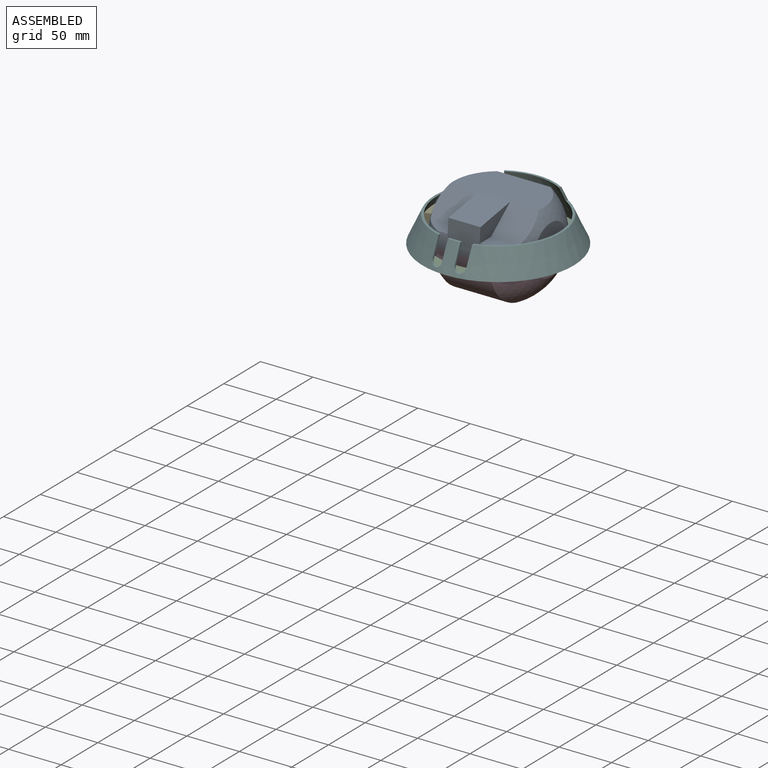
[diagram: assembled view]
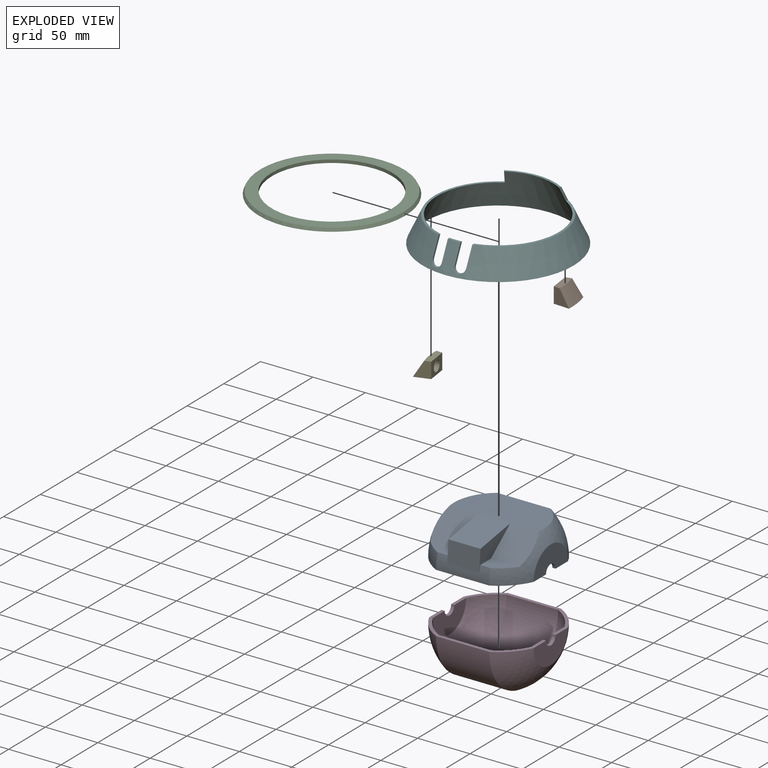
[diagram: exploded view]
GUIDED TOUR — MATED ASSEMBLY (Onshape document 95c7f3a3e9fd0e2e9566c98f, AutoMate assembly 95c7f3a3e9fd0e2e9566c98f_8609b0c129c2d041dbbb4b11_05ddca2daed9d79f0fb7b234_default)

This assembly has 6 components, labeled P0..P5 below (a component is one placed occurrence of a part; the same part can appear more than once), held together by 6 mates. A mate is a constraint between two components; its type names the relative motion it leaves free:
  CYLINDRICAL — leaves both rotation about and translation along the listed axis free,
  FASTENED — locks the two components together rigidly (no relative motion),
  PLANAR — leaves sliding in the plane through the listed point (normal = the listed direction) and rotation about that normal free.
Axis/direction vectors are unit vectors and 'through' points are millimeter coordinates, both in the assembly's world frame.

MATES
  1. CYLINDRICAL "Cylindrical 3": P4 <-> P2, axis (0.000, 0.000, -1.000) through (-6.62, -30.67, 6.61) mm
  2. CYLINDRICAL "Cylindrical 2": P1 <-> P2, axis (0.000, 0.000, -1.000) through (-6.62, -30.67, 6.74) mm
  3. FASTENED "Fastened 1": P3 <-> P0, direction (0.000, 0.000, 1.000) through (-6.77, 5.37, 10.98) mm
  4. CYLINDRICAL "Cylindrical 1": P5 <-> P2, axis (0.000, 0.000, -1.000) through (-6.62, -30.67, 3.74) mm
  5. CYLINDRICAL "Cylindrical 4": P4 <-> P2, axis (0.000, 0.000, -1.000) through (-6.62, -30.67, 6.61) mm
  6. PLANAR "Planar 1": P2 <-> P5, direction (0.000, 0.000, -1.000) through (-6.62, -30.67, 3.74) mm

ASSEMBLY ORDER
  1. P5 — the base component [order verified]
  2. P1 [order verified]
  3. P4 [order verified]
  4. P2 [order verified]
  5. P0 [order verified]
  6. P3 [order verified]
(P1, P4 verified with a relaxed clearance tolerance: the source model stores slight part interference there.)
Order-tag legend:
  [order verified] — this step's position reverses a verified removal order: the component was checked to insert without passing through the ones already placed.

Of the 6 components, 5 carry the full construction recipe — the FeatureScript program that regenerates the part's solid from scratch; the rest are supplied as boundary geometry only.
Each toured component is shown spotlighted twice — in the assembled view, then in the exploded view, where a leader line traces a displaced component back to its assembled socket (saturated green if recipe-attached, orange if geometry-only; every other component desaturated gray) — followed by its recipe or geometry summary and the mates that hold it.
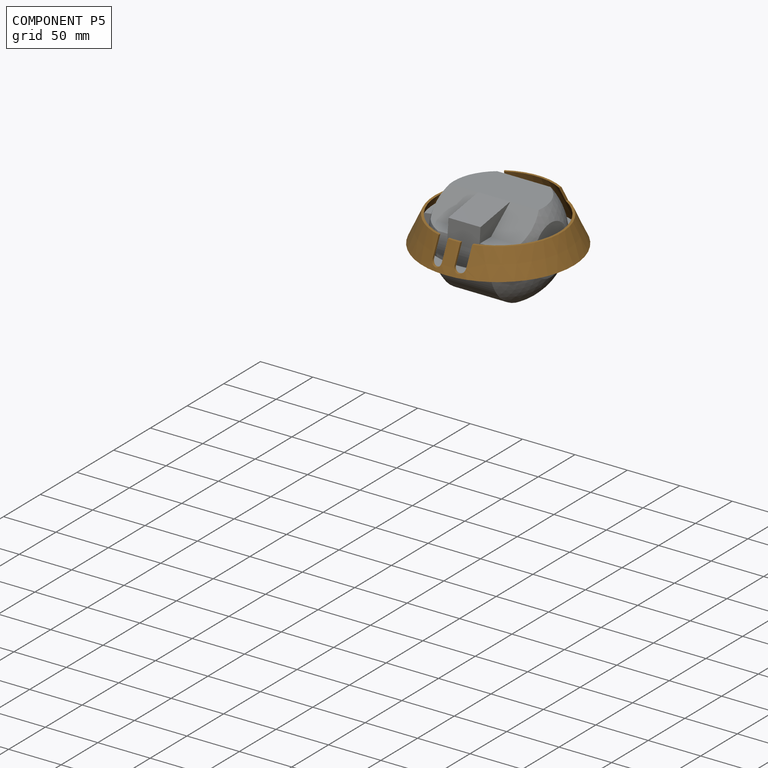
[diagram: component P5 — assembled]
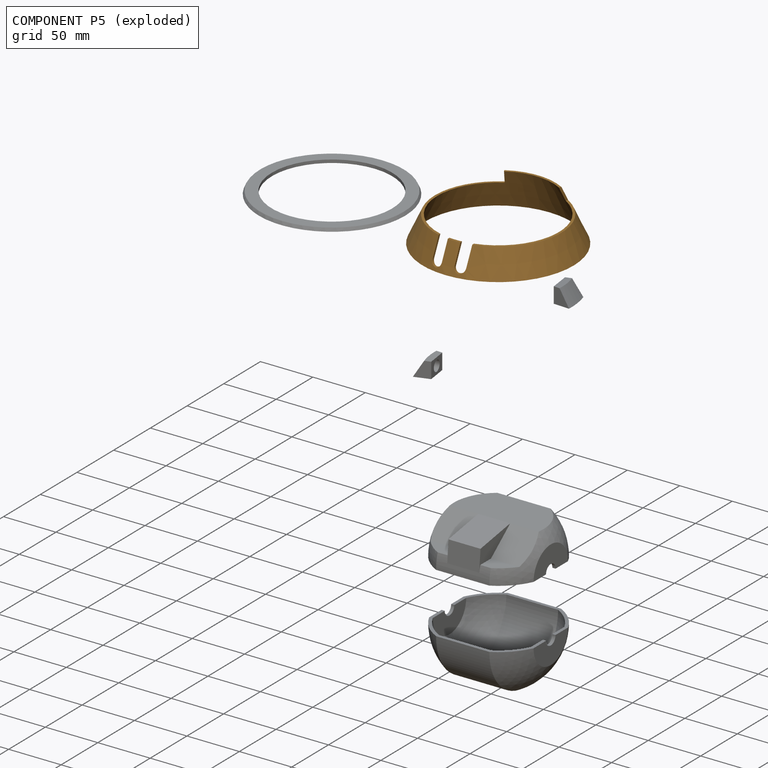
[diagram: component P5 — exploded]
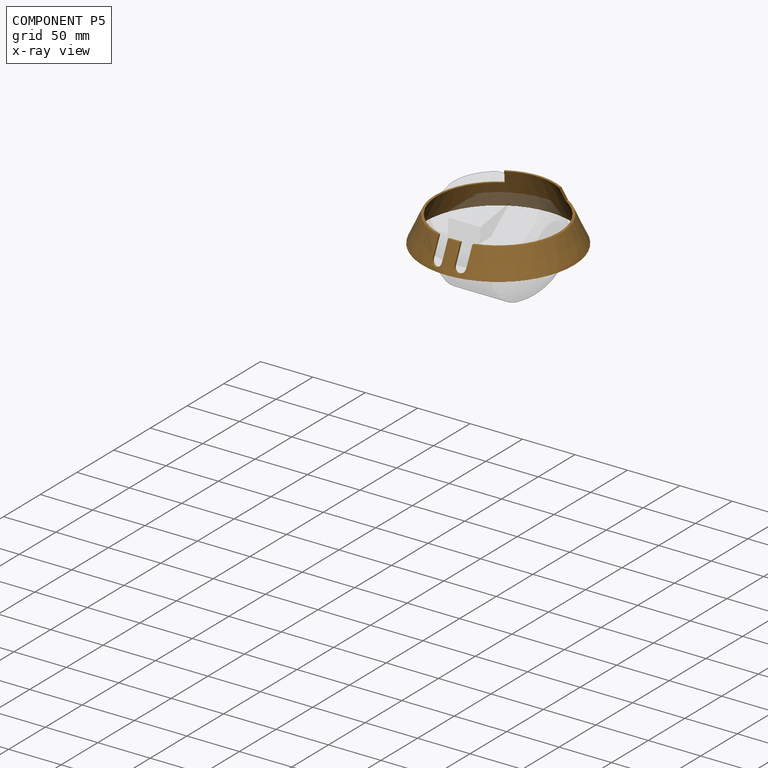
[diagram: component P5 — x-ray view]
COMPONENT P5 — geometry summary (no construction recipe available for this part):
  bounding box: 144.1 x 144.1 x 37.8 mm
  B-rep topology: 1 solid, 15 faces, 84 edges
  volume: 23409 mm^3 (3% of its bounding box)
  symmetry: mirror-symmetric across its x mid-plane
Held by: CYLINDRICAL mate "Cylindrical 1" to P2; PLANAR mate "Planar 1" to P2.
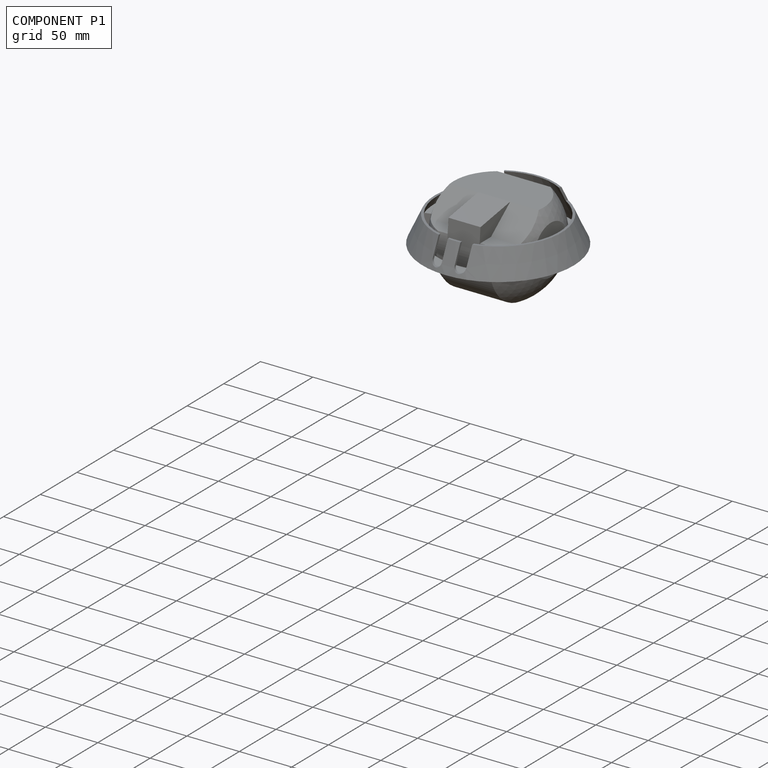
[diagram: component P1 — assembled]
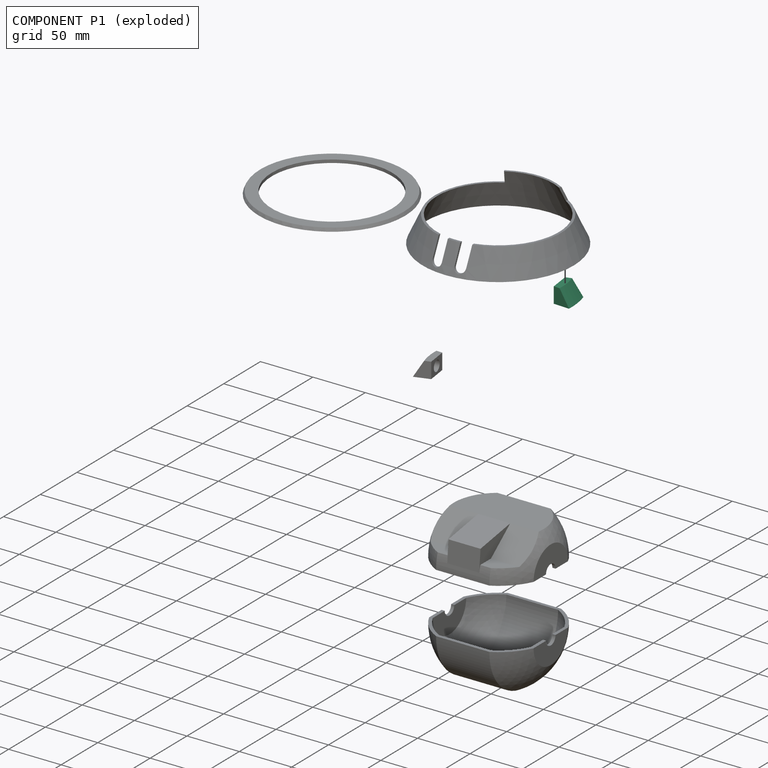
[diagram: component P1 — exploded]
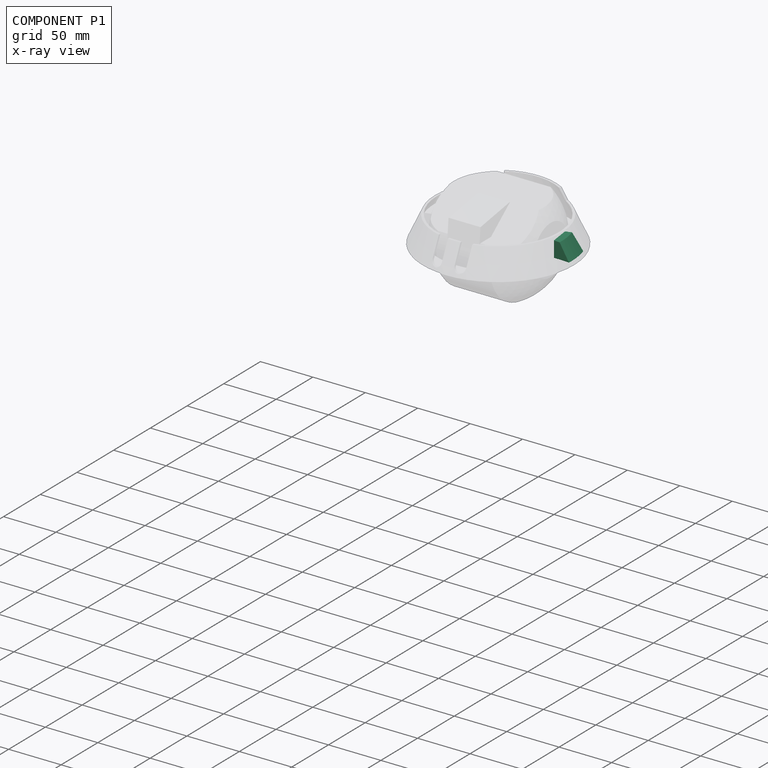
[diagram: component P1 — x-ray view]
COMPONENT P1 — recipe-attached (CADFS 00121436, mesh-verified: the recipe's output STEP matches this component's geometry to below the mesh-comparison resolution (tessellation chordal tolerance ~0.0489 mm)).
Held by: CYLINDRICAL mate "Cylindrical 2" to P2.
Construction recipe (FeatureScript — the CAD program that rebuilds this solid; sketch coordinates are in the units given by the * unit suffixes, e.g. mm):

FeatureScript 1511;
import(path : "onshape/std/geometry.fs", version : "1511.0");
import(path : "onshape/std/common.fs", version : "1511.0");
const mm = millimeter;
const VERTEX = EntityType.VERTEX;
const EDGE = EntityType.EDGE;
const FACE = EntityType.FACE;
const BODY = EntityType.BODY;
function v(x, y){return vector(x, y);}
function OD(order){return orderDisambiguation(order);}
function OSD(set){return originalSetDisambiguation(set);}
function TD(topology){return topologyDisambiguation(topology);}
function TDD(query){return trueDependencyDisambiguation(query);}
function sQuery(a, b, c) {return sketchEntityQuery(a, b, c);}

annotation { "Feature Type Name" : "Feature", "Feature Type Description" : "" }
export const myFeature = defineFeature(function(context is Context, id is Id, definition is map)
    precondition{}
    {
        {
            var Q0;
            Q0=qCreatedBy(makeId("Front.planeOp"),FACE);
            var sketch = newSketch(context, id + "F0", { "sketchPlane" : qUnion([Q0])});
            skLineSegment(sketch, "E0", {"start": v(0, 0) * mm, "end": v(0, 25.25) * mm});
            skLineSegment(sketch, "E1.0", {"start": v(60.55, 15) * mm, "end": v(69.8, 0) * mm});
            skLineSegment(sketch, "E2", {"start": v(69.8, 0) * mm, "end": v(54.8, 0) * mm});
            skLineSegment(sketch, "E3", {"start": v(54.8, 0) * mm, "end": v(54.8, 15) * mm});
            skLineSegment(sketch, "E4", {"start": v(54.8, 15) * mm, "end": v(60.55, 15) * mm});
            skSolve(sketch);
        }
        {
            var Q0;
            Q0=makeQuery(id+"F0.imprint","IMPRINT",FACE,{"disambiguationData":[TD([[makeQuery(id+"F0.imprint","IMPRINT",EDGE,{"derivedFrom":sQuery(id+"F0.wireOp",EDGE,"E1.0")}),-1.0]])]});
            var Q1;
            Q1=sQuery(id+"F0.wireOp",EDGE,"E0");
            revolve(context, id + "F5", {"entities" : qUnion([Q0]), "axis" : qUnion([Q1]), "revolveType" : RevolveType.TWO_DIRECTIONS, "angle" : 10 * degree, "angleBack" : 350 * degree});
        }
        {
            var Q0;
            Q0=qCreatedBy(makeId("Right.planeOp"),FACE);
            var sketch = newSketch(context, id + "F1", { "sketchPlane" : qUnion([Q0])});
            skCircle(sketch, "E5", {"center": v(0, 7.5) * mm, "radius": 5 * mm});
            skSolve(sketch);
        }
        {
            var Q0;
            Q0=makeQuery(id+"F5.opRevolve","SWEPT_FACE",FACE,{"disambiguationData":[OSD([sQuery(id+"F0.wireOp",EDGE,"E4")])]});
            var sketch = newSketch(context, id + "F2", { "sketchPlane" : qUnion([Q0])});
            skLineSegment(sketch, "E6", {"start": v(53.96, 9.52) * mm, "end": v(53.96, -9.52) * mm});
            skLineSegment(sketch, "E7", {"start": v(53.96, -9.52) * mm, "end": v(54.8, -9.66) * mm});
            skPoint(sketch, "E7.endSnap0", {"position": v(54.8, 0) * mm});
            skLineSegment(sketch, "E8", {"start": v(54.8, 9.66) * mm, "end": v(53.96, 9.52) * mm});
            skLineSegment(sketch, "E9", {"start": v(54.8, 9.66) * mm, "end": v(56.5, 0) * mm});
            skLineSegment(sketch, "E10", {"start": v(56.5, 0) * mm, "end": v(54.8, -9.66) * mm});
            skSolve(sketch);
        }
        {
            var Q0;
            Q0 = qSketchRegion(id + "F2", true);
            extrude(context, id + "F3", {"entities" : qUnion([Q0]), "operationType" : NewBodyOperationType.ADD, "oppositeDirection" : true, "depth" : 15 * mm});
        }
        {
            var Q0;
            Q0 = qSketchRegion(id + "F1", true);
            extrude(context, id + "F4", {"entities" : qUnion([Q0]), "operationType" : NewBodyOperationType.REMOVE, "depth" : 61.9 * mm});
        }
    });
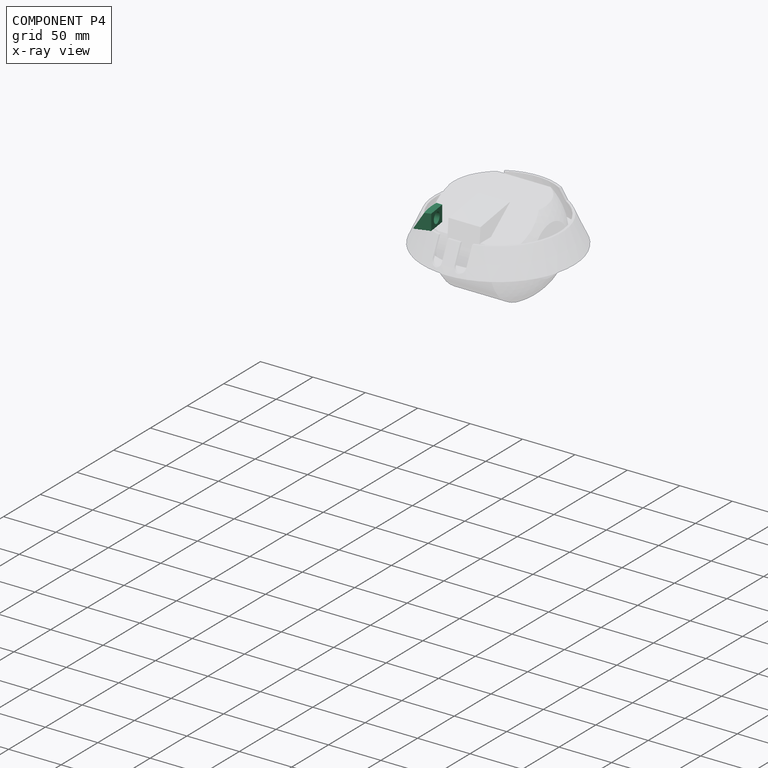
[diagram: component P4 — x-ray view]
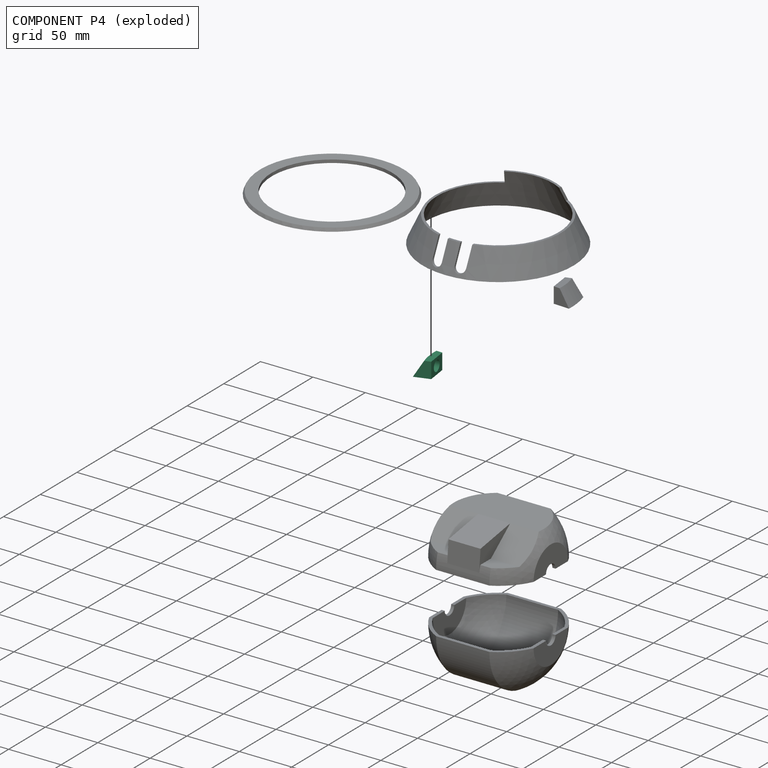
[diagram: component P4 — exploded]
COMPONENT P4 — same part as P1 (CADFS 00121436); its construction recipe is shown at P1.
Held by: CYLINDRICAL mate "Cylindrical 3" to P2; CYLINDRICAL mate "Cylindrical 4" to P2.
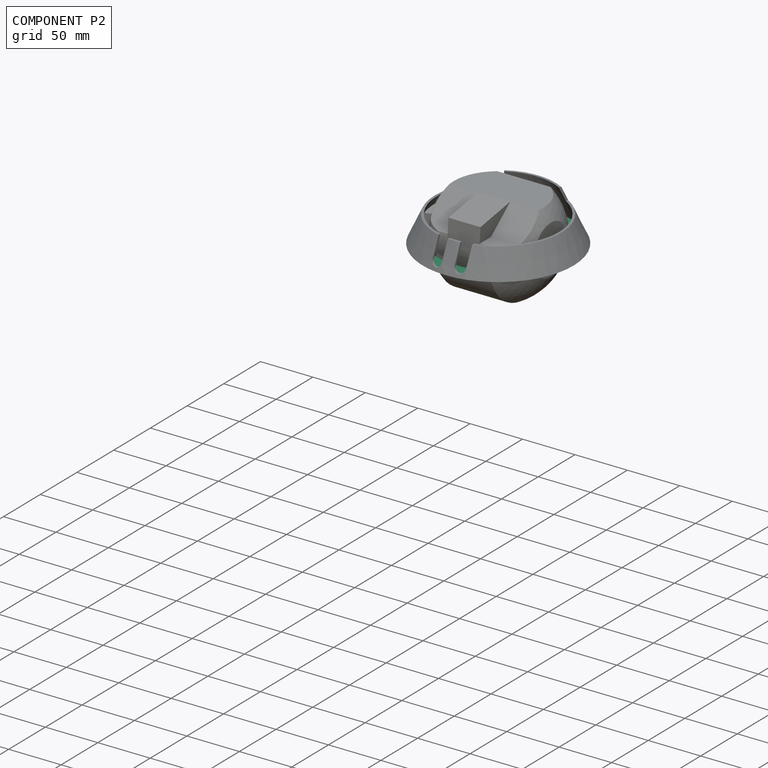
[diagram: component P2 — assembled]
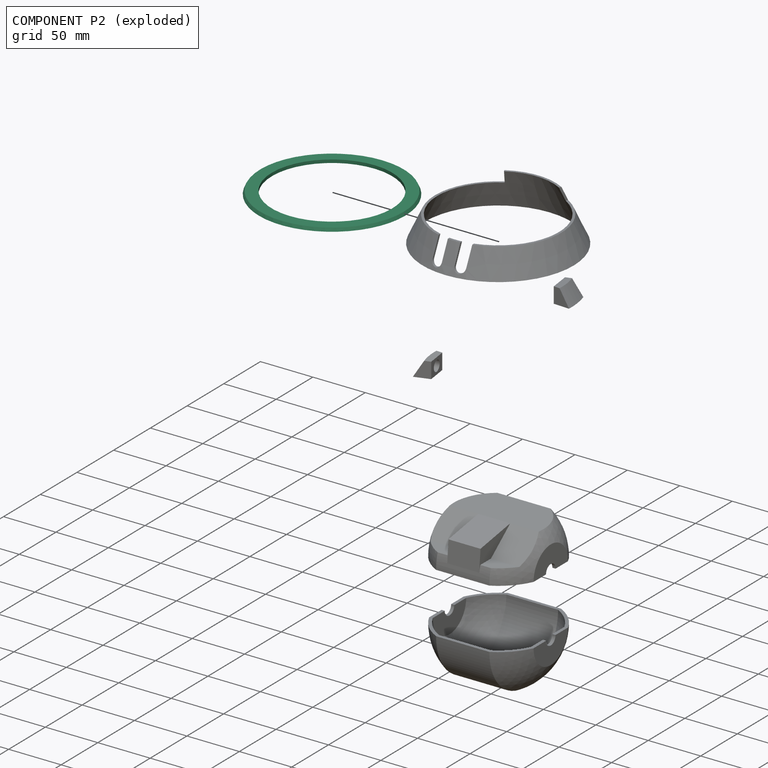
[diagram: component P2 — exploded]
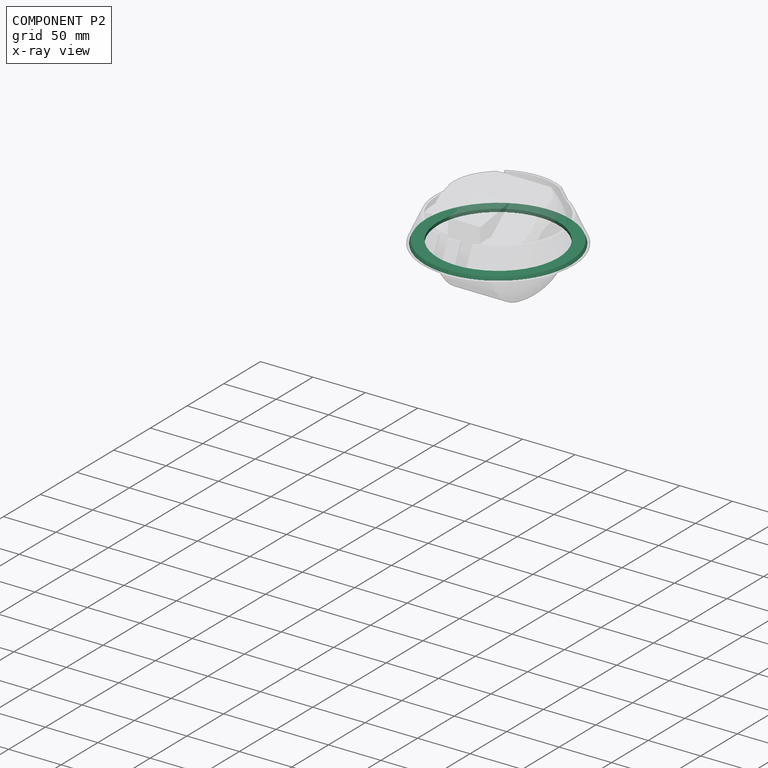
[diagram: component P2 — x-ray view]
COMPONENT P2 — recipe-attached (CADFS 00121437, mesh-verified: the recipe's output STEP matches this component's geometry to below the mesh-comparison resolution (tessellation chordal tolerance ~0.296 mm)).
Held by: CYLINDRICAL mate "Cylindrical 3" to P4; CYLINDRICAL mate "Cylindrical 2" to P1; CYLINDRICAL mate "Cylindrical 1" to P5; CYLINDRICAL mate "Cylindrical 4" to P4; PLANAR mate "Planar 1" to P5.
Construction recipe (FeatureScript — the CAD program that rebuilds this solid; sketch coordinates are in the units given by the * unit suffixes, e.g. mm):

FeatureScript 1511;
import(path : "onshape/std/geometry.fs", version : "1511.0");
import(path : "onshape/std/common.fs", version : "1511.0");
const mm = millimeter;
const VERTEX = EntityType.VERTEX;
const EDGE = EntityType.EDGE;
const FACE = EntityType.FACE;
const BODY = EntityType.BODY;
function v(x, y){return vector(x, y);}
function OD(order){return orderDisambiguation(order);}
function OSD(set){return originalSetDisambiguation(set);}
function TD(topology){return topologyDisambiguation(topology);}
function TDD(query){return trueDependencyDisambiguation(query);}
function sQuery(a, b, c) {return sketchEntityQuery(a, b, c);}

annotation { "Feature Type Name" : "Feature", "Feature Type Description" : "" }
export const myFeature = defineFeature(function(context is Context, id is Id, definition is map)
    precondition{}
    {
        {
            var Q0;
            Q0=qCreatedBy(makeId("Front.planeOp"),FACE);
            var sketch = newSketch(context, id + "F0", { "sketchPlane" : qUnion([Q0])});
            skLineSegment(sketch, "E0.0", {"start": v(68.41, 3) * mm, "end": v(69.8, 0) * mm});
            skPoint(sketch, "E1.end.orphan", {"position": v(-60.33, 25.25) * mm});
            skPoint(sketch, "E2.orphan", {"position": v(-72, 0) * mm});
            skLineSegment(sketch, "E3", {"start": v(69.8, 0) * mm, "end": v(0, 0) * mm});
            skLineSegment(sketch, "E4.0", {"start": v(68.41, 3) * mm, "end": v(0, 3) * mm});
            skLineSegment(sketch, "E5", {"start": v(0, 3) * mm, "end": v(0, 0) * mm});
            skSolve(sketch);
        }
        {
            var Q0;
            Q0 = qSketchRegion(id + "F0", true);
            var Q1;
            Q1=sQuery(id+"F0.wireOp",EDGE,"E5");
            revolve(context, id + "F1", {"entities" : qUnion([Q0]), "axis" : qUnion([Q1]), "revolveType" : RevolveType.FULL});
        }
        {
            var Q0;
            Q0=makeQuery(id+"F1.opRevolve","SWEPT_FACE",FACE,{"disambiguationData":[OSD([sQuery(id+"F0.wireOp",EDGE,"E4.0")])]});
            var sketch = newSketch(context, id + "F2", { "sketchPlane" : qUnion([Q0])});
            skCircle(sketch, "E6", {"center": v(0, 0) * mm, "radius": 57.5 * mm});
            skSolve(sketch);
        }
        {
            var Q0;
            Q0=makeQuery(id+"F2.imprint","IMPRINT",FACE,{"disambiguationData":[TD([[makeQuery(id+"F2.imprint","IMPRINT",EDGE,{"derivedFrom":sQuery(id+"F2.wireOp",EDGE,"E6")}),1.0]])]});
            extrude(context, id + "F3", {"entities" : qUnion([Q0]), "operationType" : NewBodyOperationType.REMOVE, "oppositeDirection" : true, "depth" : 3 * mm});
        }
    });
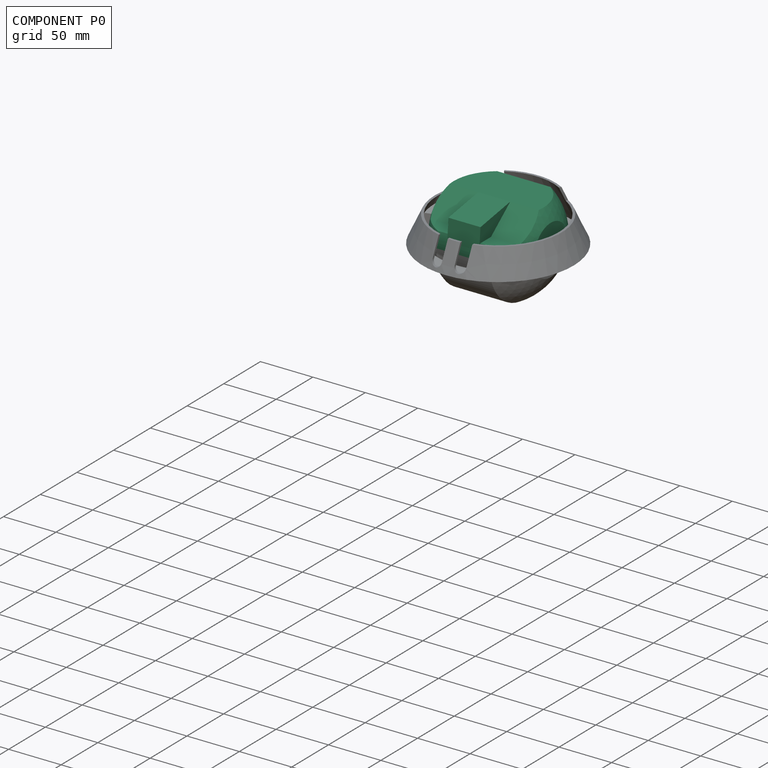
[diagram: component P0 — assembled]
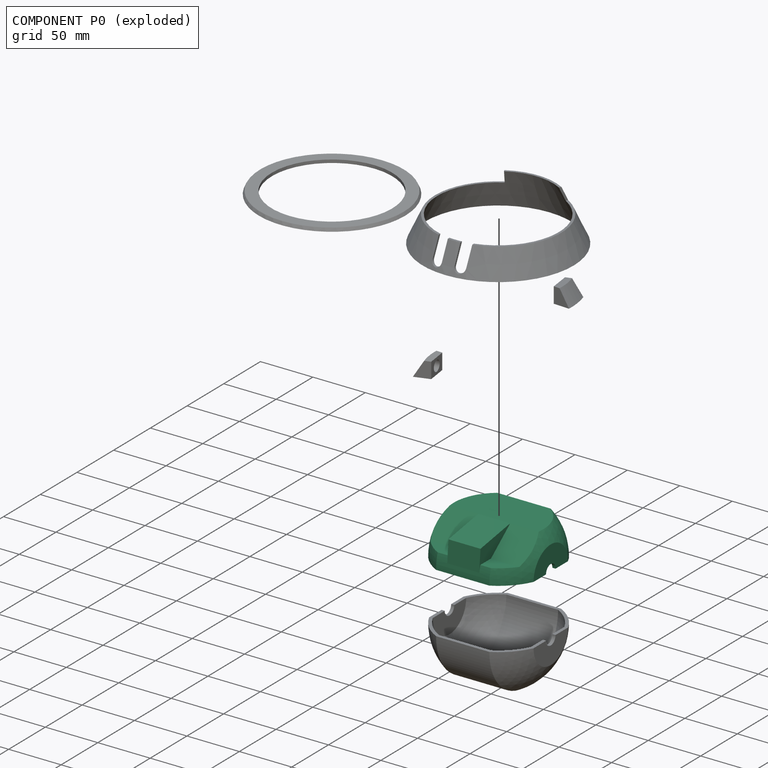
[diagram: component P0 — exploded]
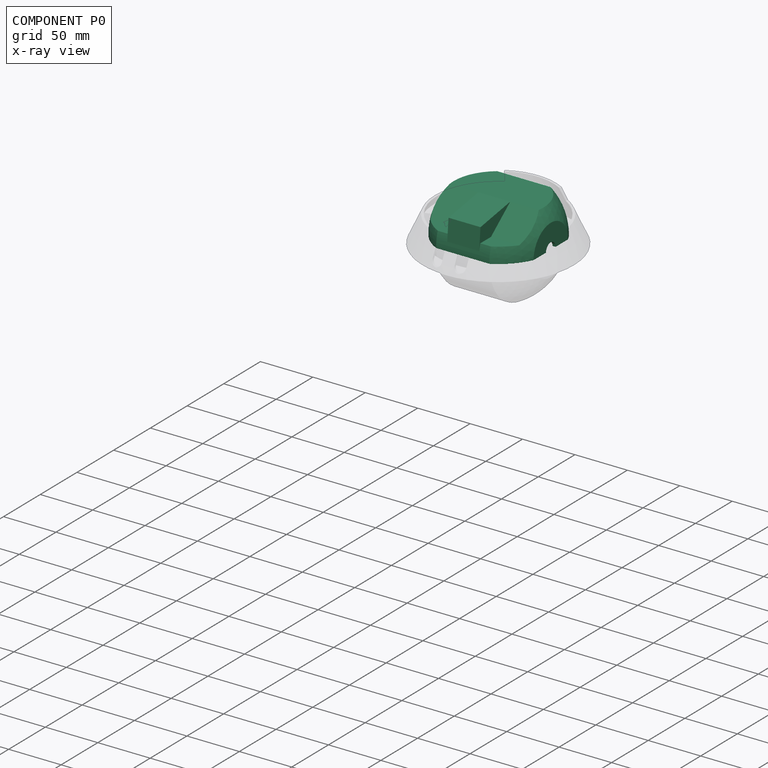
[diagram: component P0 — x-ray view]
COMPONENT P0 — recipe-attached (CADFS 00121439, mesh-verified: the recipe's output STEP matches this component's geometry to below the mesh-comparison resolution (tessellation chordal tolerance ~0.216 mm)).
Held by: FASTENED mate "Fastened 1" to P3.
Construction recipe (FeatureScript — the CAD program that rebuilds this solid; sketch coordinates are in the units given by the * unit suffixes, e.g. mm):

FeatureScript 1511;
import(path : "onshape/std/geometry.fs", version : "1511.0");
import(path : "onshape/std/common.fs", version : "1511.0");
const mm = millimeter;
const VERTEX = EntityType.VERTEX;
const EDGE = EntityType.EDGE;
const FACE = EntityType.FACE;
const BODY = EntityType.BODY;
function v(x, y){return vector(x, y);}
function OD(order){return orderDisambiguation(order);}
function OSD(set){return originalSetDisambiguation(set);}
function TD(topology){return topologyDisambiguation(topology);}
function TDD(query){return trueDependencyDisambiguation(query);}
function sQuery(a, b, c) {return sketchEntityQuery(a, b, c);}

annotation { "Feature Type Name" : "Feature", "Feature Type Description" : "" }
export const myFeature = defineFeature(function(context is Context, id is Id, definition is map)
    precondition{}
    {
        {
            var Q0;
            Q0=qCreatedBy(makeId("Top.planeOp"),FACE);
            var sketch = newSketch(context, id + "F0", { "sketchPlane" : qUnion([Q0])});
            skArc(sketch, "E0", {"start": v(0, -55.05) * mm, "mid": v(55.05, 0) * mm, "end": v(0, 55.05) * mm});
            skLineSegment(sketch, "E1", {"start": v(0, 0) * mm, "end": v(0, 55.05) * mm});
            skLineSegment(sketch, "E2", {"start": v(0, 0) * mm, "end": v(0, -55.05) * mm});
            skSolve(sketch);
        }
        {
            var Q0;
            Q0 = qSketchRegion(id + "F0", true);
            var Q1;
            Q1=sQuery(id+"F0.wireOp",EDGE,"E1");
            revolve(context, id + "F1", {"entities" : qUnion([Q0]), "axis" : qUnion([Q1]), "revolveType" : RevolveType.FULL});
        }
        {
            var Q0;
            Q0=qCreatedBy(makeId("Top.planeOp"),FACE);
            var sketch = newSketch(context, id + "F2", { "sketchPlane" : qUnion([Q0])});
            skLineSegment(sketch, "E3", {"start": v(-49.81, 26.1) * mm, "end": v(-49.81, -26.1) * mm});
            skLineSegment(sketch, "E4", {"start": v(-49.81, 26.1) * mm, "end": v(-57.5, 26.1) * mm});
            skLineSegment(sketch, "E5", {"start": v(-57.5, 26.1) * mm, "end": v(-57.5, -26.1) * mm});
            skLineSegment(sketch, "E6", {"start": v(-57.5, -26.1) * mm, "end": v(-49.81, -26.1) * mm});
            skLineSegment(sketch, "E7.MirrorCS", {"start": v(49.81, 26.1) * mm, "end": v(49.81, -26.1) * mm});
            skLineSegment(sketch, "E8.MirrorCS", {"start": v(49.81, 26.1) * mm, "end": v(57.5, 26.1) * mm});
            skLineSegment(sketch, "E9.MirrorCS", {"start": v(57.5, 26.1) * mm, "end": v(57.5, -26.1) * mm});
            skLineSegment(sketch, "E10.MirrorCS", {"start": v(57.5, -26.1) * mm, "end": v(49.81, -26.1) * mm});
            skPoint(sketch, "E11.end.orphan", {"position": v(-49.81, 0) * mm});
            skSolve(sketch);
        }
        {
            var Q0;
            Q0 = qSketchRegion(id + "F2", true);
            extrude(context, id + "F3", {"entities" : qUnion([Q0]), "operationType" : NewBodyOperationType.REMOVE, "endBound" : BoundingType.SYMMETRIC, "oppositeDirection" : true, "depth" : 50 * mm});
        }
        {
            var Q0;
            Q0=qCreatedBy(makeId("Right.planeOp"),FACE);
            var sketch = newSketch(context, id + "F4", { "sketchPlane" : qUnion([Q0])});
            skLineSegment(sketch, "E12", {"start": v(-5.9, 34.63) * mm, "end": v(42.8, 34.63) * mm});
            skLineSegment(sketch, "E13", {"start": v(-5.9, 34.63) * mm, "end": v(-32.1, 14.27) * mm});
            skLineSegment(sketch, "E14", {"start": v(-32.1, 14.27) * mm, "end": v(-53.17, 14.27) * mm});
            skArc(sketch, "E15", {"start": v(42.8, 34.63) * mm, "mid": v(-11.42, 53.85) * mm, "end": v(-53.17, 14.27) * mm});
            skPoint(sketch, "E16.orphan", {"position": v(-42.8, 34.63) * mm});
            skSolve(sketch);
        }
        {
            var Q0;
            Q0 = qSketchRegion(id + "F4", true);
            extrude(context, id + "F5", {"entities" : qUnion([Q0]), "operationType" : NewBodyOperationType.REMOVE, "endBound" : BoundingType.SYMMETRIC, "oppositeDirection" : true, "depth" : 100 * mm});
        }
        {
            var Q0;
            Q0=qCreatedBy(makeId("Right.planeOp"),FACE);
            var sketch = newSketch(context, id + "F6", { "sketchPlane" : qUnion([Q0])});
            skCircle(sketch, "E17", {"center": v(0, 0) * mm, "radius": 6.5 * mm});
            skSolve(sketch);
        }
        {
            var Q0;
            Q0 = qSketchRegion(id + "F6", true);
            extrude(context, id + "F7", {"entities" : qUnion([Q0]), "operationType" : NewBodyOperationType.REMOVE, "endBound" : BoundingType.SYMMETRIC, "oppositeDirection" : true, "depth" : 100 * mm});
        }
        {
            var Q0;
            Q0=qCreatedBy(makeId("Right.planeOp"),FACE);
            var sketch = newSketch(context, id + "F8", { "sketchPlane" : qUnion([Q0])});
            skCircle(sketch, "E18", {"center": v(0, 0) * mm, "radius": 64.9 * mm});
            skCircle(sketch, "E19", {"center": v(0, 0) * mm, "radius": 48.83 * mm});
            skSolve(sketch);
        }
        {
            var Q0;
            Q0 = qSketchRegion(id + "F8", true);
            extrude(context, id + "F9", {"entities" : qUnion([Q0]), "operationType" : NewBodyOperationType.REMOVE, "endBound" : BoundingType.SYMMETRIC, "depth" : 100 * mm});
        }
        {
            var Q0;
            Q0=qCreatedBy(makeId("Right.planeOp"),FACE);
            var sketch = newSketch(context, id + "F10", { "sketchPlane" : qUnion([Q0])});
            skLineSegment(sketch, "E20", {"start": v(-46.4, 28.07) * mm, "end": v(-5.9, 34.63) * mm});
            skLineSegment(sketch, "E21", {"start": v(-46.4, 28.07) * mm, "end": v(-48.15, 8.16) * mm});
            skLineSegment(sketch, "E22", {"start": v(-5.9, 34.63) * mm, "end": v(-34.33, 9.36) * mm});
            skLineSegment(sketch, "E23", {"start": v(-34.33, 9.36) * mm, "end": v(-48.15, 8.16) * mm});
            skSolve(sketch);
        }
        {
            var Q0;
            Q0 = qSketchRegion(id + "F10", true);
            extrude(context, id + "F11", {"entities" : qUnion([Q0]), "operationType" : NewBodyOperationType.ADD, "endBound" : BoundingType.SYMMETRIC, "depth" : 30.5 * mm});
        }
        {
            var Q0;
            Q0=qCreatedBy(makeId("Right.planeOp"),FACE);
            var sketch = newSketch(context, id + "F12", { "sketchPlane" : qUnion([Q0])});
            skLineSegment(sketch, "E24", {"start": v(-64.02, 0) * mm, "end": v(62.32, 0) * mm});
            skLineSegment(sketch, "E25", {"start": v(62.32, 0) * mm, "end": v(62.32, -54.39) * mm});
            skLineSegment(sketch, "E26", {"start": v(62.32, -54.39) * mm, "end": v(-64.02, -54.39) * mm});
            skLineSegment(sketch, "E27", {"start": v(-64.02, -54.39) * mm, "end": v(-64.02, 0) * mm});
            skSolve(sketch);
        }
        {
            var Q0;
            Q0 = qSketchRegion(id + "F12", true);
            extrude(context, id + "F13", {"entities" : qUnion([Q0]), "operationType" : NewBodyOperationType.REMOVE, "endBound" : BoundingType.SYMMETRIC, "oppositeDirection" : true, "depth" : 100 * mm});
        }
        {
            var Q0;
            Q0=makeQuery(id+"F13.boolean.opBoolean","COPY",FACE,{"disambiguationData":[OD(1.0)],"derivedFrom":makeQuery(id+"F13.opExtrude","SWEPT_FACE",FACE,{"disambiguationData":[OSD([sQuery(id+"F12.wireOp",EDGE,"E24")])]})});
            var Q1;
            Q1=makeQuery(id+"F7.boolean.opBoolean","COPY",FACE,{"derivedFrom":makeQuery(id+"F7.opExtrude","SWEPT_FACE",FACE,{"disambiguationData":[OSD([sQuery(id+"F6.wireOp",EDGE,"E17")])]})});
            var Q2;
            Q2=makeQuery(id+"F13.boolean.opBoolean","COPY",FACE,{"disambiguationData":[OD(0.0)],"derivedFrom":makeQuery(id+"F13.opExtrude","SWEPT_FACE",FACE,{"disambiguationData":[OSD([sQuery(id+"F12.wireOp",EDGE,"E24")])]})});
            shell(context, id + "F14", {"entities" : qUnion([Q0, Q1, Q2]), "thickness" : 3 * mm});
        }
    });
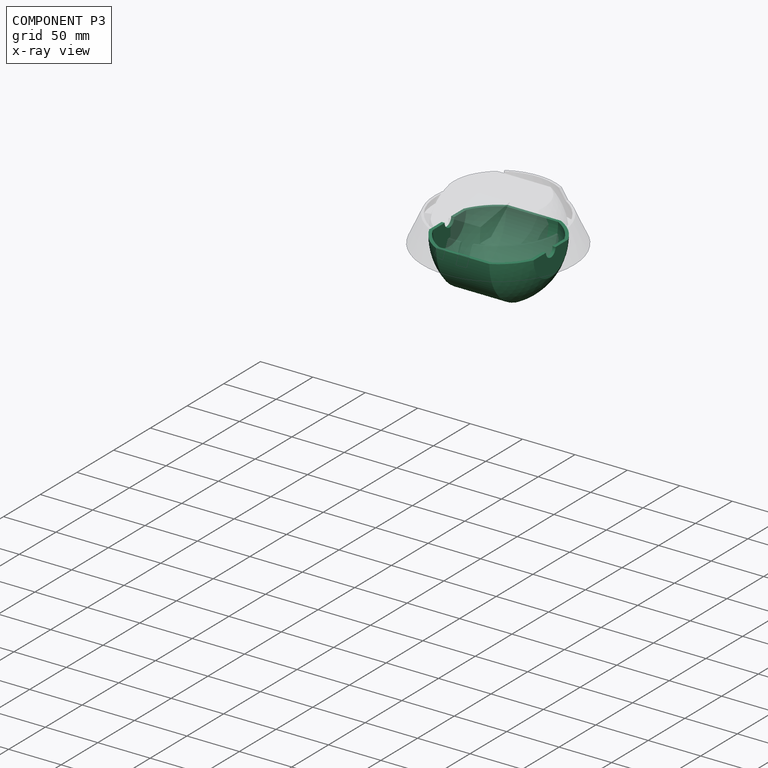
[diagram: component P3 — x-ray view]
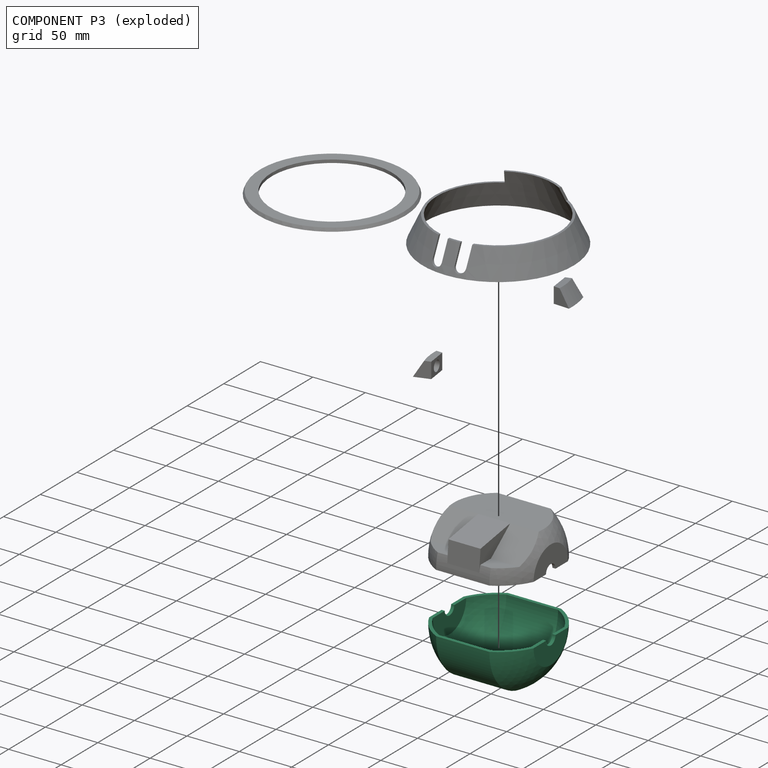
[diagram: component P3 — exploded]
COMPONENT P3 — recipe-attached (CADFS 00121440, mesh-verified: the recipe's output STEP matches this component's geometry to below the mesh-comparison resolution (tessellation chordal tolerance ~0.222 mm)).
Held by: FASTENED mate "Fastened 1" to P0.
Construction recipe (FeatureScript — the CAD program that rebuilds this solid; sketch coordinates are in the units given by the * unit suffixes, e.g. mm):

FeatureScript 1511;
import(path : "onshape/std/geometry.fs", version : "1511.0");
import(path : "onshape/std/common.fs", version : "1511.0");
const mm = millimeter;
const VERTEX = EntityType.VERTEX;
const EDGE = EntityType.EDGE;
const FACE = EntityType.FACE;
const BODY = EntityType.BODY;
function v(x, y){return vector(x, y);}
function OD(order){return orderDisambiguation(order);}
function OSD(set){return originalSetDisambiguation(set);}
function TD(topology){return topologyDisambiguation(topology);}
function TDD(query){return trueDependencyDisambiguation(query);}
function sQuery(a, b, c) {return sketchEntityQuery(a, b, c);}

annotation { "Feature Type Name" : "Feature", "Feature Type Description" : "" }
export const myFeature = defineFeature(function(context is Context, id is Id, definition is map)
    precondition{}
    {
        {
            var Q0;
            Q0=qCreatedBy(makeId("Top.planeOp"),FACE);
            var sketch = newSketch(context, id + "F0", { "sketchPlane" : qUnion([Q0])});
            skArc(sketch, "E0", {"start": v(0, -55.05) * mm, "mid": v(55.05, 0) * mm, "end": v(0, 55.05) * mm});
            skLineSegment(sketch, "E1", {"start": v(0, 0) * mm, "end": v(0, 55.05) * mm});
            skLineSegment(sketch, "E2", {"start": v(0, 0) * mm, "end": v(0, -55.05) * mm});
            skSolve(sketch);
        }
        {
            var Q0;
            Q0=qSketchRegion(id+"F0",true);
            var Q1;
            Q1=sQuery(id+"F0.wireOp",EDGE,"E1");
            revolve(context, id + "F1", {"entities" : qUnion([Q0]), "axis" : qUnion([Q1]), "revolveType" : RevolveType.FULL});
        }
        {
            var Q0;
            Q0=qCreatedBy(makeId("Top.planeOp"),FACE);
            var sketch = newSketch(context, id + "F2", { "sketchPlane" : qUnion([Q0])});
            skLineSegment(sketch, "E3", {"start": v(-49.81, 26.1) * mm, "end": v(-49.81, -26.1) * mm});
            skLineSegment(sketch, "E4", {"start": v(-49.81, 26.1) * mm, "end": v(-57.5, 26.1) * mm});
            skLineSegment(sketch, "E5", {"start": v(-57.5, 26.1) * mm, "end": v(-57.5, -26.1) * mm});
            skLineSegment(sketch, "E6", {"start": v(-57.5, -26.1) * mm, "end": v(-49.81, -26.1) * mm});
            skLineSegment(sketch, "E7.MirrorCS", {"start": v(49.81, 26.1) * mm, "end": v(49.81, -26.1) * mm});
            skLineSegment(sketch, "E8.MirrorCS", {"start": v(49.81, 26.1) * mm, "end": v(57.5, 26.1) * mm});
            skLineSegment(sketch, "E9.MirrorCS", {"start": v(57.5, 26.1) * mm, "end": v(57.5, -26.1) * mm});
            skLineSegment(sketch, "E10.MirrorCS", {"start": v(57.5, -26.1) * mm, "end": v(49.81, -26.1) * mm});
            skPoint(sketch, "E11.end.orphan", {"position": v(-49.81, 0) * mm});
            skSolve(sketch);
        }
        {
            var Q0;
            Q0=qSketchRegion(id+"F2",true);
            extrude(context, id + "F3", {"entities" : qUnion([Q0]), "operationType" : NewBodyOperationType.REMOVE, "endBound" : BoundingType.SYMMETRIC, "oppositeDirection" : true, "depth" : 50 * mm});
        }
        {
            var Q0;
            Q0=qCreatedBy(makeId("Right.planeOp"),FACE);
            var sketch = newSketch(context, id + "F4", { "sketchPlane" : qUnion([Q0])});
            skLineSegment(sketch, "E12", {"start": v(-5.9, 34.63) * mm, "end": v(42.8, 34.63) * mm});
            skLineSegment(sketch, "E13", {"start": v(-5.9, 34.63) * mm, "end": v(-32.1, 14.27) * mm});
            skLineSegment(sketch, "E14", {"start": v(-32.1, 14.27) * mm, "end": v(-53.17, 14.27) * mm});
            skArc(sketch, "E15", {"start": v(42.8, 34.63) * mm, "mid": v(-11.42, 53.85) * mm, "end": v(-53.17, 14.27) * mm});
            skPoint(sketch, "E16.orphan", {"position": v(-42.8, 34.63) * mm});
            skSolve(sketch);
        }
        {
            var Q0;
            Q0=qSketchRegion(id+"F4",true);
            extrude(context, id + "F5", {"entities" : qUnion([Q0]), "operationType" : NewBodyOperationType.REMOVE, "endBound" : BoundingType.SYMMETRIC, "oppositeDirection" : true, "depth" : 100 * mm});
        }
        {
            var Q0;
            Q0=qCreatedBy(makeId("Right.planeOp"),FACE);
            var sketch = newSketch(context, id + "F6", { "sketchPlane" : qUnion([Q0])});
            skCircle(sketch, "E17", {"center": v(0, 0) * mm, "radius": 6.5 * mm});
            skSolve(sketch);
        }
        {
            var Q0;
            Q0=qSketchRegion(id+"F6",true);
            extrude(context, id + "F7", {"entities" : qUnion([Q0]), "operationType" : NewBodyOperationType.REMOVE, "endBound" : BoundingType.SYMMETRIC, "oppositeDirection" : true, "depth" : 100 * mm});
        }
        {
            var Q0;
            Q0=qCreatedBy(makeId("Right.planeOp"),FACE);
            var sketch = newSketch(context, id + "F8", { "sketchPlane" : qUnion([Q0])});
            skCircle(sketch, "E18", {"center": v(0, 0) * mm, "radius": 64.9 * mm});
            skCircle(sketch, "E19", {"center": v(0, 0) * mm, "radius": 48.83 * mm});
            skSolve(sketch);
        }
        {
            var Q0;
            Q0=qSketchRegion(id+"F8",true);
            extrude(context, id + "F9", {"entities" : qUnion([Q0]), "operationType" : NewBodyOperationType.REMOVE, "endBound" : BoundingType.SYMMETRIC, "depth" : 100 * mm});
        }
        {
            var Q0;
            Q0=qCreatedBy(makeId("Right.planeOp"),FACE);
            var sketch = newSketch(context, id + "F10", { "sketchPlane" : qUnion([Q0])});
            skLineSegment(sketch, "E20", {"start": v(-46.4, 28.07) * mm, "end": v(-5.9, 34.63) * mm});
            skLineSegment(sketch, "E21", {"start": v(-46.4, 28.07) * mm, "end": v(-48.15, 8.16) * mm});
            skLineSegment(sketch, "E22", {"start": v(-5.9, 34.63) * mm, "end": v(-34.33, 9.36) * mm});
            skLineSegment(sketch, "E23", {"start": v(-34.33, 9.36) * mm, "end": v(-48.15, 8.16) * mm});
            skSolve(sketch);
        }
        {
            var Q0;
            Q0=qSketchRegion(id+"F10",true);
            extrude(context, id + "F11", {"entities" : qUnion([Q0]), "operationType" : NewBodyOperationType.ADD, "endBound" : BoundingType.SYMMETRIC, "depth" : 30.5 * mm});
        }
        {
            var Q0;
            Q0=qCreatedBy(makeId("Right.planeOp"),FACE);
            var sketch = newSketch(context, id + "F12", { "sketchPlane" : qUnion([Q0])});
            skLineSegment(sketch, "E24", {"start": v(-64.02, 0) * mm, "end": v(62.32, 0) * mm});
            skLineSegment(sketch, "E25", {"start": v(-64.02, 0) * mm, "end": v(-64.02, 48.44) * mm});
            skLineSegment(sketch, "E26", {"start": v(-64.02, 48.44) * mm, "end": v(62.32, 48.44) * mm});
            skLineSegment(sketch, "E27", {"start": v(62.32, 48.44) * mm, "end": v(62.32, 0) * mm});
            skSolve(sketch);
        }
        {
            var Q0;
            Q0=qSketchRegion(id+"F12",true);
            extrude(context, id + "F13", {"entities" : qUnion([Q0]), "operationType" : NewBodyOperationType.REMOVE, "endBound" : BoundingType.SYMMETRIC, "oppositeDirection" : true, "depth" : 100 * mm});
        }
        {
            var Q0;
            Q0=makeQuery(id+"F13.boolean.opBoolean","COPY",FACE,{"disambiguationData":[OD(0.0)],"derivedFrom":makeQuery(id+"F13.opExtrude","SWEPT_FACE",FACE,{"disambiguationData":[OSD([sQuery(id+"F12.wireOp",EDGE,"E24")])]})});
            var Q1;
            Q1=makeQuery(id+"F13.boolean.opBoolean","COPY",FACE,{"disambiguationData":[OD(1.0)],"derivedFrom":makeQuery(id+"F13.opExtrude","SWEPT_FACE",FACE,{"disambiguationData":[OSD([sQuery(id+"F12.wireOp",EDGE,"E24")])]})});
            var Q2;
            Q2=makeQuery(id+"F7.boolean.opBoolean","COPY",FACE,{"derivedFrom":makeQuery(id+"F7.opExtrude","SWEPT_FACE",FACE,{"disambiguationData":[OSD([sQuery(id+"F6.wireOp",EDGE,"E17")])]})});
            shell(context, id + "F14", {"entities" : qUnion([Q0, Q1, Q2]), "thickness" : 3 * mm});
        }
        {
            var Q0;
            Q0=qCreatedBy(makeId("Top.planeOp"),FACE);
            var sketch = newSketch(context, id + "F15", { "sketchPlane" : qUnion([Q0])});
            skCircle(sketch, "E28", {"center": v(0, 0) * mm, "radius": 17.5 * mm});
            skSolve(sketch);
        }
        {
            var Q0;
            Q0 = qSketchRegion(id + "F15", true);
            extrude(context, id + "F16", {"entities" : qUnion([Q0]), "operationType" : NewBodyOperationType.REMOVE, "oppositeDirection" : true, "depth" : 66.2 * mm});
        }
    });
PROVENANCE & LICENSES
Assembly (occurrences, transforms, mates, per-part STEP geometry): AutoMate dataset, Zenodo record 7776208, CC0.
Construction recipes: CADFS (HuggingFace VladPyatov/CADFS, CC-BY-4.0, layered over the ABC dataset), FeatureScript reconstruction programs keyed by ABC model id.
Join: ABC meta listings map ABC model id -> Onshape documentId; within a shared document, parts are matched by geometric signature (bounding-box dims + volume at 0.1% relative tolerance, exact B-rep face/solid counts).
Verification: 5 of this assembly's 6 components carry a recipe attachment, and every attachment is mesh-verified: the CADFS STEP and the AutoMate member STEP were compared as meshes in their shared local frame (symmetric sampled-point-to-mesh distance); worst across the 5 attachments: below the mesh-comparison resolution (tessellation chordal tolerance ~0.296 mm) on a 197 mm part.
Renders: orthographic iso camera (az 35 / el 25); the floor grid conveys scale (grid pitch printed in each image; no ruler). In the exploded view each component is displaced by its stored offset vector: the offsets alone carry the explosion direction (mate normal/axis signs are not orientation cues and do not encode it), and separation distances are assigned per mate-chain, not proportionally to assembly-order depth.
